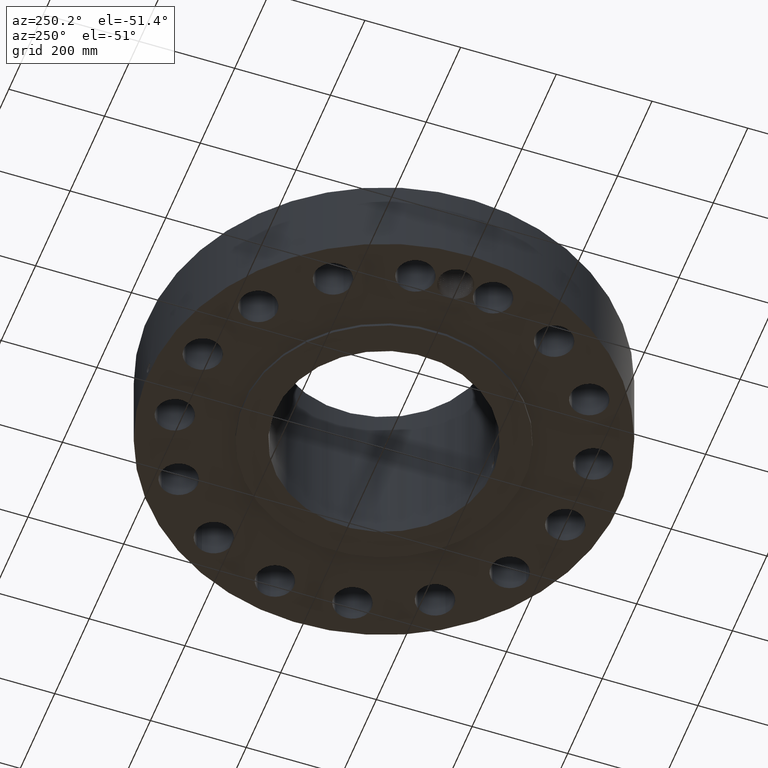
[diagram: clean part render]
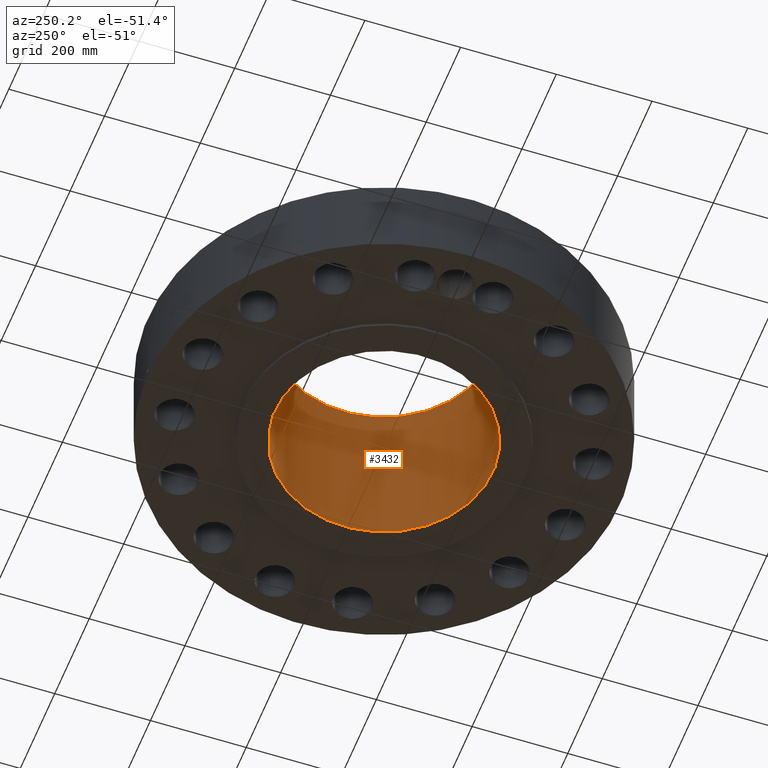
[diagram: same view with one face highlighted and labeled with its STEP entity id]
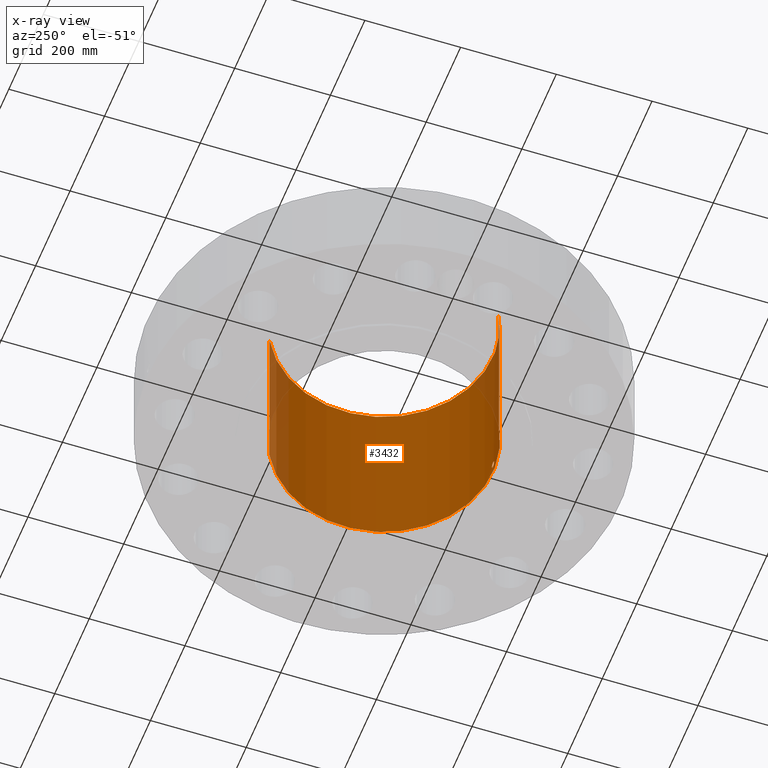
[diagram: x-ray of the same camera — body ghosted, the highlighted face saturated]
A machine part, auxiliary view. The second image highlights one B-rep face of the part: STEP entity #3432.
The next image is the same camera in x-ray: the body ghosted, the highlighted face saturated — about 7% of this face is hidden behind the body in this view.
In plain terms, the highlighted cylindrical surface (partial cylindrical patch) has radius 227.813 mm, axis along (0, 0, -1).
Its self-contained STEP definition (entity closure, byte-faithful):
#2620=AXIS2_PLACEMENT_3D('Circle Axis2P3D',#2618,#2619,$) ;
#3363=AXIS2_PLACEMENT_3D('Cylinder Axis2P3D',#3360,#3361,#3362) ;
#3367=AXIS2_PLACEMENT_3D('Circle Axis2P3D',#3365,#3366,$) ;
#2618=CARTESIAN_POINT('Axis2P3D Location',(0.,0.,0.)) ;
#2622=CARTESIAN_POINT('Vertex',(4.29996765576,7.87103799763,-6.37810014777E-014)) ;
#2624=CARTESIAN_POINT('Vertex',(-4.29996765576,-7.87103799763,-6.37810014777E-014)) ;
#3360=CARTESIAN_POINT('Axis2P3D Location',(0.,0.,7.12500000003)) ;
#3365=CARTESIAN_POINT('Axis2P3D Location',(0.,0.,14.2500000001)) ;
#3369=CARTESIAN_POINT('Vertex',(4.29996765576,7.87103799763,14.2500000001)) ;
#3371=CARTESIAN_POINT('Vertex',(-4.29996765576,-7.87103799763,14.2500000001)) ;
#3374=CARTESIAN_POINT('Line Origine',(4.29996765576,7.87103799763,7.12500000003)) ;
#3379=CARTESIAN_POINT('Line Origine',(-4.29996765576,-7.87103799763,7.12500000003)) ;
#3391=CARTESIAN_POINT('Control Point',(0.219395640473,-8.96631621981,0.820143615352)) ;
#3392=CARTESIAN_POINT('Control Point',(0.194443026174,-8.96692678212,0.774468161252)) ;
#3393=CARTESIAN_POINT('Control Point',(0.157605265651,-8.96774130692,0.735288404517)) ;
#3394=CARTESIAN_POINT('Control Point',(0.11110799497,-8.96853346439,0.706756904868)) ;
#3395=CARTESIAN_POINT('Control Point',(0.0336731189615,-8.96916372939,0.684117382236)) ;
#3396=CARTESIAN_POINT('Control Point',(-0.0446715204779,-8.96894592942,0.691943688418)) ;
#3397=CARTESIAN_POINT('Control Point',(-0.0703014043839,-8.96877685015,0.69795638545)) ;
#3398=CARTESIAN_POINT('Control Point',(-0.143957694005,-8.96802968103,0.725788714306)) ;
#3399=CARTESIAN_POINT('Control Point',(-0.203245376901,-8.96681009959,0.780503899879)) ;
#3400=CARTESIAN_POINT('Control Point',(-0.23221043912,-8.96601020457,0.826743461219)) ;
#3401=CARTESIAN_POINT('Control Point',(-0.255840642753,-8.96535265894,0.904890040927)) ;
#3402=CARTESIAN_POINT('Control Point',(-0.2482825454,-8.96556280169,0.984254243263)) ;
#3403=CARTESIAN_POINT('Control Point',(-0.242048774471,-8.96573863905,1.01081635596)) ;
#3404=CARTESIAN_POINT('Control Point',(-0.232315330233,-8.96600008958,1.03620705118)) ;
#3405=CARTESIAN_POINT('Control Point',(-0.219395640473,-8.96631621981,1.05985638466)) ;
#3406=CARTESIAN_POINT('Vertex',(0.219395640473,-8.96631621981,0.820143615352)) ;
#3408=CARTESIAN_POINT('Vertex',(-0.219395640473,-8.96631621981,1.05985638466)) ;
#3412=CARTESIAN_POINT('Control Point',(-0.219395640473,-8.96631621981,1.05985638466)) ;
#3413=CARTESIAN_POINT('Control Point',(-0.194443026153,-8.96692678212,1.10553183879)) ;
#3414=CARTESIAN_POINT('Control Point',(-0.157605265588,-8.96774130692,1.14471159556)) ;
#3415=CARTESIAN_POINT('Control Point',(-0.111107995057,-8.96853346439,1.17324309511)) ;
#3416=CARTESIAN_POINT('Control Point',(-0.0336731190096,-8.96916372939,1.19588261777)) ;
#3417=CARTESIAN_POINT('Control Point',(0.0446715204698,-8.96894592942,1.18805631159)) ;
#3418=CARTESIAN_POINT('Control Point',(0.0703014043918,-8.96877685015,1.18204361455)) ;
#3419=CARTESIAN_POINT('Control Point',(0.143957694025,-8.96802968103,1.15421128569)) ;
#3420=CARTESIAN_POINT('Control Point',(0.203245376927,-8.96681009959,1.0994961001)) ;
#3421=CARTESIAN_POINT('Control Point',(0.232210439109,-8.96601020457,1.05325653882)) ;
#3422=CARTESIAN_POINT('Control Point',(0.255840642738,-8.96535265894,0.975109959154)) ;
#3423=CARTESIAN_POINT('Control Point',(0.248282545411,-8.96556280168,0.895745756859)) ;
#3424=CARTESIAN_POINT('Control Point',(0.24204877443,-8.96573863905,0.869183643939)) ;
#3425=CARTESIAN_POINT('Control Point',(0.232315330206,-8.96600008958,0.843792948776)) ;
#3426=CARTESIAN_POINT('Control Point',(0.219395640473,-8.96631621981,0.820143615352)) ;
#2619=DIRECTION('Axis2P3D Direction',(0.,0.,-0.0393700787402)) ;
#3361=DIRECTION('Axis2P3D Direction',(0.,0.,-0.0393700787402)) ;
#3362=DIRECTION('Axis2P3D XDirection',(-0.0188750212049,-0.0345504945626,0.)) ;
#3366=DIRECTION('Axis2P3D Direction',(0.,0.,-0.0393700787402)) ;
#3375=DIRECTION('Vector Direction',(0.,0.,-0.0393700787402)) ;
#3380=DIRECTION('Vector Direction',(0.,0.,-0.0393700787402)) ;
#3376=VECTOR('Line Direction',#3375,0.0393700787402) ;
#3381=VECTOR('Line Direction',#3380,0.0393700787402) ;
#3385=ORIENTED_EDGE('',*,*,#3373,.F.) ;
#3386=ORIENTED_EDGE('',*,*,#3378,.T.) ;
#3387=ORIENTED_EDGE('',*,*,#2626,.T.) ;
#3388=ORIENTED_EDGE('',*,*,#3383,.F.) ;
#3429=ORIENTED_EDGE('',*,*,#3410,.F.) ;
#3430=ORIENTED_EDGE('',*,*,#3427,.F.) ;
#3431=FACE_BOUND('',#3428,.T.) ;
#3432=ADVANCED_FACE('PartBody',(#3389,#3431),#3364,.F.) ;
#3390=B_SPLINE_CURVE_WITH_KNOTS('',5,(#3391,#3392,#3393,#3394,#3395,#3396,#3397,#3398,#3399,#3400,#3401,#3402,#3403,#3404,#3405),.UNSPECIFIED.,.F.,.U.,(6,3,3,3,6),(0.,9.348533498,14.0228774914,23.3729149465,28.2132956399),.UNSPECIFIED.) ;
#3411=B_SPLINE_CURVE_WITH_KNOTS('',5,(#3412,#3413,#3414,#3415,#3416,#3417,#3418,#3419,#3420,#3421,#3422,#3423,#3424,#3425,#3426),.UNSPECIFIED.,.F.,.U.,(6,3,3,3,6),(0.,9.34853350592,14.0228774986,23.3729149568,28.2132956398),.UNSPECIFIED.) ;
#2621=CIRCLE('generated circle',#2620,8.96900000004) ;
#3368=CIRCLE('generated circle',#3367,8.96900000004) ;
#3364=CYLINDRICAL_SURFACE('generated cylinder',#3363,8.96900000004) ;
#2626=EDGE_CURVE('',#2623,#2625,#2621,.T.) ;
#3373=EDGE_CURVE('',#3370,#3372,#3368,.T.) ;
#3378=EDGE_CURVE('',#3370,#2623,#3377,.T.) ;
#3383=EDGE_CURVE('',#3372,#2625,#3382,.T.) ;
#3410=EDGE_CURVE('',#3407,#3409,#3390,.T.) ;
#3427=EDGE_CURVE('',#3409,#3407,#3411,.T.) ;
#3384=EDGE_LOOP('',(#3385,#3386,#3387,#3388)) ;
#3428=EDGE_LOOP('',(#3429,#3430)) ;
#3389=FACE_OUTER_BOUND('',#3384,.T.) ;
#3377=LINE('Line',#3374,#3376) ;
#3382=LINE('Line',#3379,#3381) ;
#2623=VERTEX_POINT('',#2622) ;
#2625=VERTEX_POINT('',#2624) ;
#3370=VERTEX_POINT('',#3369) ;
#3372=VERTEX_POINT('',#3371) ;
#3407=VERTEX_POINT('',#3406) ;
#3409=VERTEX_POINT('',#3408) ;